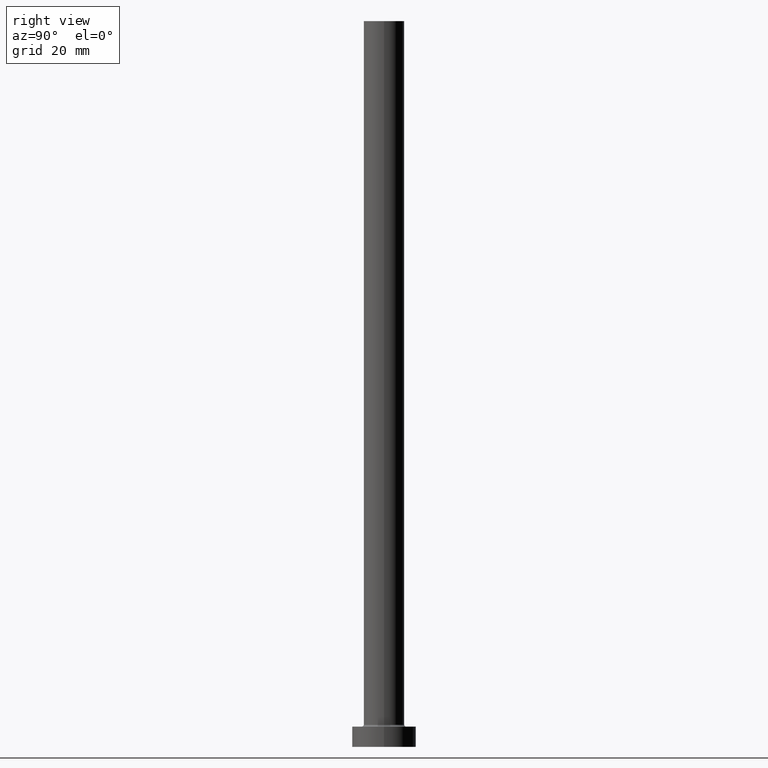
[diagram: clean part render]
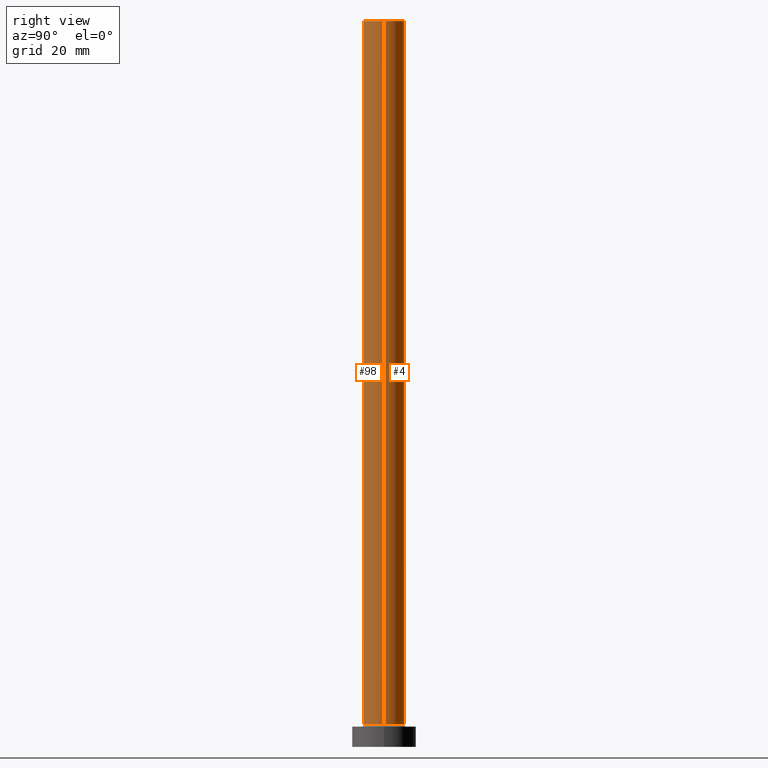
[diagram: same view with one multi-face feature highlighted, each face labeled with its STEP entity id]
A machine part, right view. The highlighted faces form ONE feature: a constant-radius fillet chain: 2 tangent blend faces with common blend radius 7 mm. The faces share edges in the B-rep.
Their STEP definitions:
[1] entity #4 (Cylinder):
#4 = ADVANCED_FACE ( 'NONE', ( #374 ), #129, .T. ) ;
#49 = DIRECTION ( 'NONE',  ( -0.000000000000000000, -0.000000000000000000, -1.000000000000000000 ) ) ;
#66 = VERTEX_POINT ( 'NONE', #189 ) ;
#69 = VECTOR ( 'NONE', #268, 1000.000000000000000 ) ;
#75 = DIRECTION ( 'NONE',  ( 0.000000000000000000, 0.000000000000000000, 1.000000000000000000 ) ) ;
#80 = AXIS2_PLACEMENT_3D ( 'NONE', #387, #75, #205 ) ;
#92 = VERTEX_POINT ( 'NONE', #261 ) ;
#118 = AXIS2_PLACEMENT_3D ( 'NONE', #298, #442, #122 ) ;
#122 = DIRECTION ( 'NONE',  ( -1.000000000000000000, 0.000000000000000000, 0.000000000000000000 ) ) ;
#127 = EDGE_CURVE ( 'NONE', #92, #226, #212, .T. ) ;
#129 = CYLINDRICAL_SURFACE ( 'NONE', #118, 7.000000000000000888 ) ;
#132 = VERTEX_POINT ( 'NONE', #359 ) ;
#137 = ORIENTED_EDGE ( 'NONE', *, *, #127, .T. ) ;
#154 = VECTOR ( 'NONE', #49, 1000.000000000000000 ) ;
#157 = ORIENTED_EDGE ( 'NONE', *, *, #339, .F. ) ;
#163 = CARTESIAN_POINT ( 'NONE',  ( -7.000000000000000888, 0.000000000000000000, 250.0000000000000000 ) ) ;
#173 = EDGE_LOOP ( 'NONE', ( #157, #137, #451, #375 ) ) ;
#189 = CARTESIAN_POINT ( 'NONE',  ( -7.000000000000000888, 0.000000000000000000, 7.700000000000012612 ) ) ;
#205 = DIRECTION ( 'NONE',  ( 1.000000000000000000, 0.000000000000000000, 0.000000000000000000 ) ) ;
#212 = LINE ( 'NONE', #363, #154 ) ;
#215 = CIRCLE ( 'NONE', #323, 7.000000000000000888 ) ;
#224 = CARTESIAN_POINT ( 'NONE',  ( 0.000000000000000000, 0.000000000000000000, 250.0000000000000000 ) ) ;
#226 = VERTEX_POINT ( 'NONE', #357 ) ;
#261 = CARTESIAN_POINT ( 'NONE',  ( 7.000000000000000888, 8.572527594031474176E-16, 250.0000000000000000 ) ) ;
#268 = DIRECTION ( 'NONE',  ( -0.000000000000000000, -0.000000000000000000, -1.000000000000000000 ) ) ;
#279 = CIRCLE ( 'NONE', #80, 7.000000000000000888 ) ;
#298 = CARTESIAN_POINT ( 'NONE',  ( 0.000000000000000000, 0.000000000000000000, 250.0000000000000000 ) ) ;
#323 = AXIS2_PLACEMENT_3D ( 'NONE', #224, #400, #434 ) ;
#339 = EDGE_CURVE ( 'NONE', #92, #132, #215, .T. ) ;
#354 = EDGE_CURVE ( 'NONE', #226, #66, #279, .T. ) ;
#357 = CARTESIAN_POINT ( 'NONE',  ( 7.000000000000000888, 8.572527594031474176E-16, 7.700000000000012612 ) ) ;
#359 = CARTESIAN_POINT ( 'NONE',  ( -7.000000000000000888, 0.000000000000000000, 250.0000000000000000 ) ) ;
#363 = CARTESIAN_POINT ( 'NONE',  ( 7.000000000000000888, 8.572527594031474176E-16, 250.0000000000000000 ) ) ;
#374 = FACE_OUTER_BOUND ( 'NONE', #173, .T. ) ;
#375 = ORIENTED_EDGE ( 'NONE', *, *, #420, .F. ) ;
#387 = CARTESIAN_POINT ( 'NONE',  ( 0.000000000000000000, 0.000000000000000000, 7.700000000000012612 ) ) ;
#400 = DIRECTION ( 'NONE',  ( 0.000000000000000000, 0.000000000000000000, 1.000000000000000000 ) ) ;
#414 = LINE ( 'NONE', #163, #69 ) ;
#420 = EDGE_CURVE ( 'NONE', #132, #66, #414, .T. ) ;
#434 = DIRECTION ( 'NONE',  ( 1.000000000000000000, 0.000000000000000000, 0.000000000000000000 ) ) ;
#442 = DIRECTION ( 'NONE',  ( -0.000000000000000000, -0.000000000000000000, -1.000000000000000000 ) ) ;
#451 = ORIENTED_EDGE ( 'NONE', *, *, #354, .T. ) ;
[2] entity #98 (Cylinder):
#1 = AXIS2_PLACEMENT_3D ( 'NONE', #248, #85, #370 ) ;
#24 = CARTESIAN_POINT ( 'NONE',  ( 0.000000000000000000, 0.000000000000000000, 7.700000000000012612 ) ) ;
#49 = DIRECTION ( 'NONE',  ( -0.000000000000000000, -0.000000000000000000, -1.000000000000000000 ) ) ;
#65 = EDGE_CURVE ( 'NONE', #132, #92, #270, .T. ) ;
#66 = VERTEX_POINT ( 'NONE', #189 ) ;
#69 = VECTOR ( 'NONE', #268, 1000.000000000000000 ) ;
#85 = DIRECTION ( 'NONE',  ( -0.000000000000000000, -0.000000000000000000, -1.000000000000000000 ) ) ;
#92 = VERTEX_POINT ( 'NONE', #261 ) ;
#98 = ADVANCED_FACE ( 'NONE', ( #286 ), #330, .T. ) ;
#100 = EDGE_LOOP ( 'NONE', ( #334, #101, #233, #275 ) ) ;
#101 = ORIENTED_EDGE ( 'NONE', *, *, #65, .F. ) ;
#127 = EDGE_CURVE ( 'NONE', #92, #226, #212, .T. ) ;
#132 = VERTEX_POINT ( 'NONE', #359 ) ;
#133 = AXIS2_PLACEMENT_3D ( 'NONE', #24, #152, #409 ) ;
#152 = DIRECTION ( 'NONE',  ( 0.000000000000000000, 0.000000000000000000, 1.000000000000000000 ) ) ;
#154 = VECTOR ( 'NONE', #49, 1000.000000000000000 ) ;
#163 = CARTESIAN_POINT ( 'NONE',  ( -7.000000000000000888, 0.000000000000000000, 250.0000000000000000 ) ) ;
#189 = CARTESIAN_POINT ( 'NONE',  ( -7.000000000000000888, 0.000000000000000000, 7.700000000000012612 ) ) ;
#201 = CIRCLE ( 'NONE', #133, 7.000000000000000888 ) ;
#212 = LINE ( 'NONE', #363, #154 ) ;
#226 = VERTEX_POINT ( 'NONE', #357 ) ;
#233 = ORIENTED_EDGE ( 'NONE', *, *, #420, .T. ) ;
#248 = CARTESIAN_POINT ( 'NONE',  ( 0.000000000000000000, 0.000000000000000000, 250.0000000000000000 ) ) ;
#261 = CARTESIAN_POINT ( 'NONE',  ( 7.000000000000000888, 8.572527594031474176E-16, 250.0000000000000000 ) ) ;
#268 = DIRECTION ( 'NONE',  ( -0.000000000000000000, -0.000000000000000000, -1.000000000000000000 ) ) ;
#270 = CIRCLE ( 'NONE', #317, 7.000000000000000888 ) ;
#275 = ORIENTED_EDGE ( 'NONE', *, *, #430, .T. ) ;
#286 = FACE_OUTER_BOUND ( 'NONE', #100, .T. ) ;
#317 = AXIS2_PLACEMENT_3D ( 'NONE', #447, #336, #401 ) ;
#330 = CYLINDRICAL_SURFACE ( 'NONE', #1, 7.000000000000000888 ) ;
#334 = ORIENTED_EDGE ( 'NONE', *, *, #127, .F. ) ;
#336 = DIRECTION ( 'NONE',  ( 0.000000000000000000, 0.000000000000000000, 1.000000000000000000 ) ) ;
#357 = CARTESIAN_POINT ( 'NONE',  ( 7.000000000000000888, 8.572527594031474176E-16, 7.700000000000012612 ) ) ;
#359 = CARTESIAN_POINT ( 'NONE',  ( -7.000000000000000888, 0.000000000000000000, 250.0000000000000000 ) ) ;
#363 = CARTESIAN_POINT ( 'NONE',  ( 7.000000000000000888, 8.572527594031474176E-16, 250.0000000000000000 ) ) ;
#370 = DIRECTION ( 'NONE',  ( -1.000000000000000000, 0.000000000000000000, 0.000000000000000000 ) ) ;
#401 = DIRECTION ( 'NONE',  ( 1.000000000000000000, 0.000000000000000000, 0.000000000000000000 ) ) ;
#409 = DIRECTION ( 'NONE',  ( 1.000000000000000000, 0.000000000000000000, 0.000000000000000000 ) ) ;
#414 = LINE ( 'NONE', #163, #69 ) ;
#420 = EDGE_CURVE ( 'NONE', #132, #66, #414, .T. ) ;
#430 = EDGE_CURVE ( 'NONE', #66, #226, #201, .T. ) ;
#447 = CARTESIAN_POINT ( 'NONE',  ( 0.000000000000000000, 0.000000000000000000, 250.0000000000000000 ) ) ;